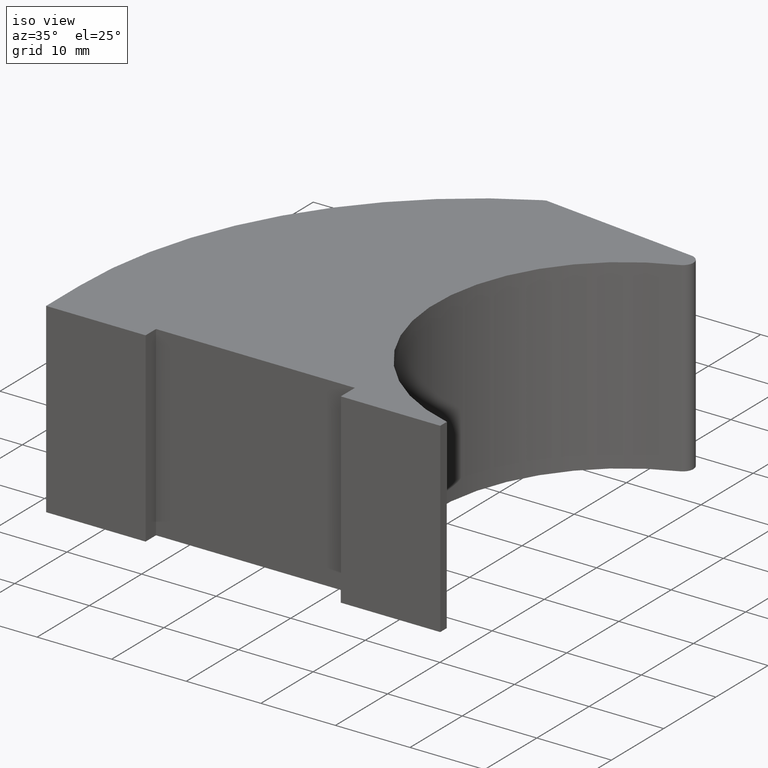
[diagram: clean part render]
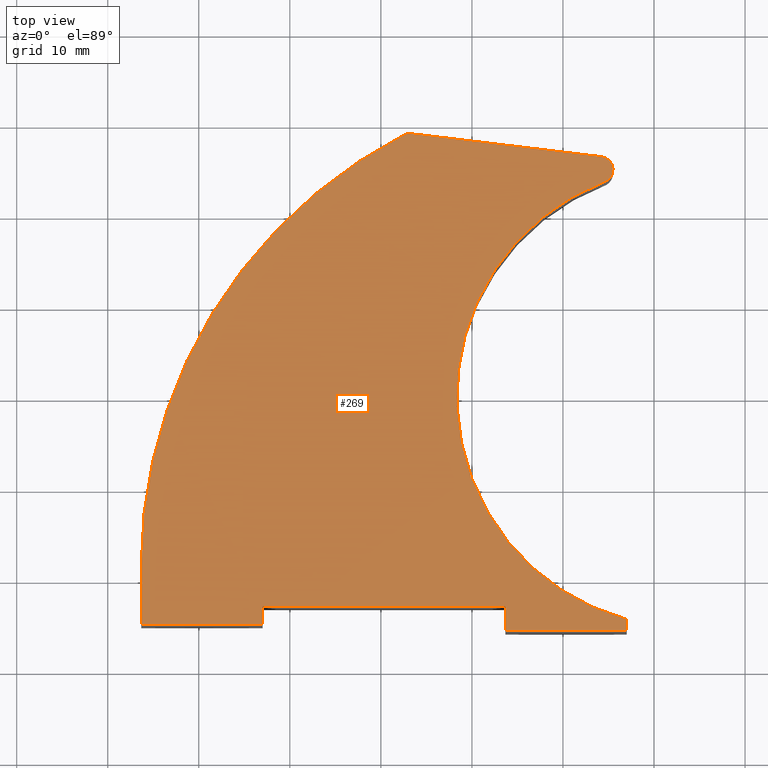
[diagram: tour spotlight — one face highlighted and labeled with its STEP entity id]
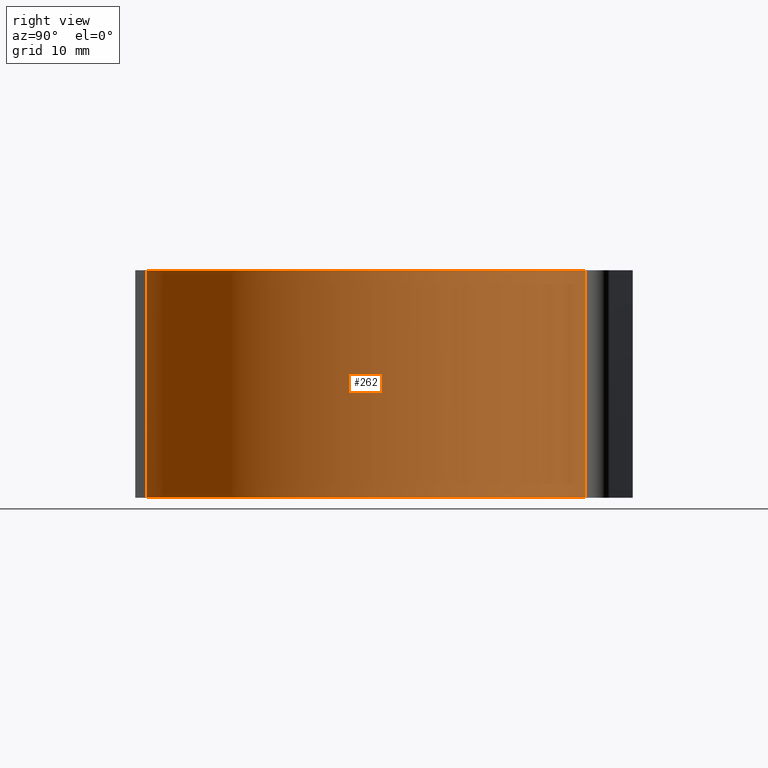
[diagram: tour spotlight — one face highlighted and labeled with its STEP entity id]
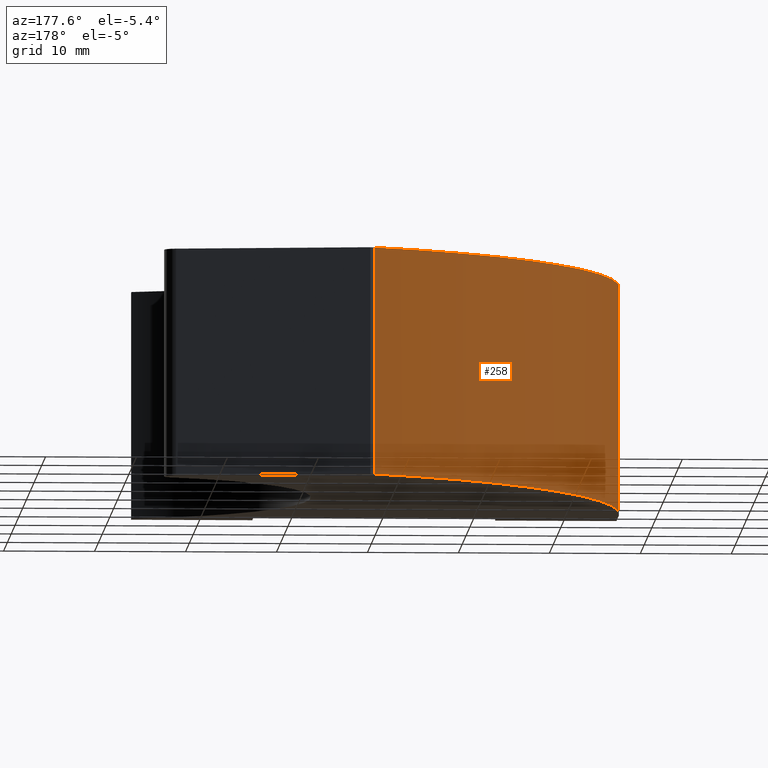
[diagram: tour spotlight — one face highlighted and labeled with its STEP entity id]
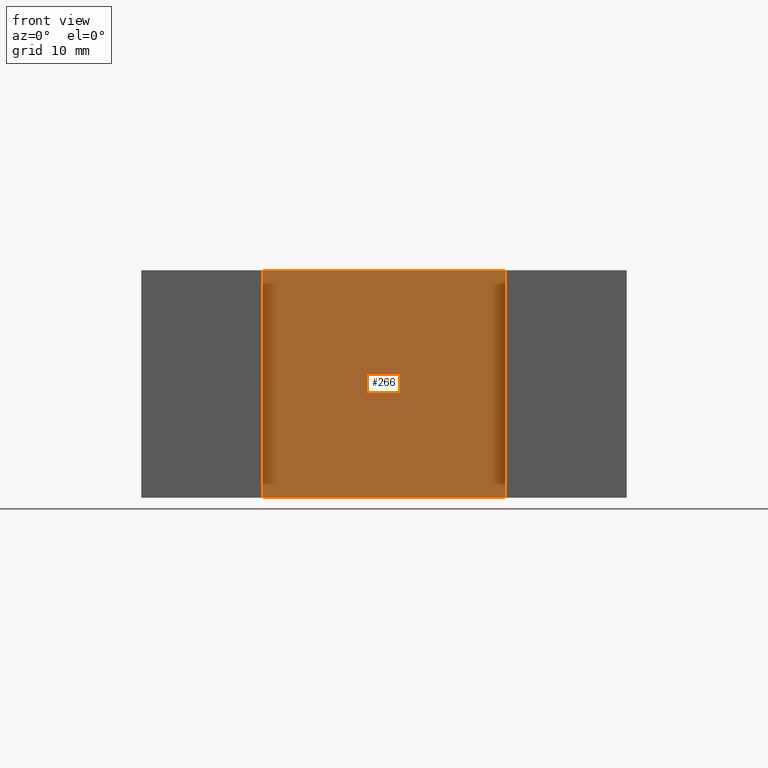
[diagram: tour spotlight — one face highlighted and labeled with its STEP entity id]
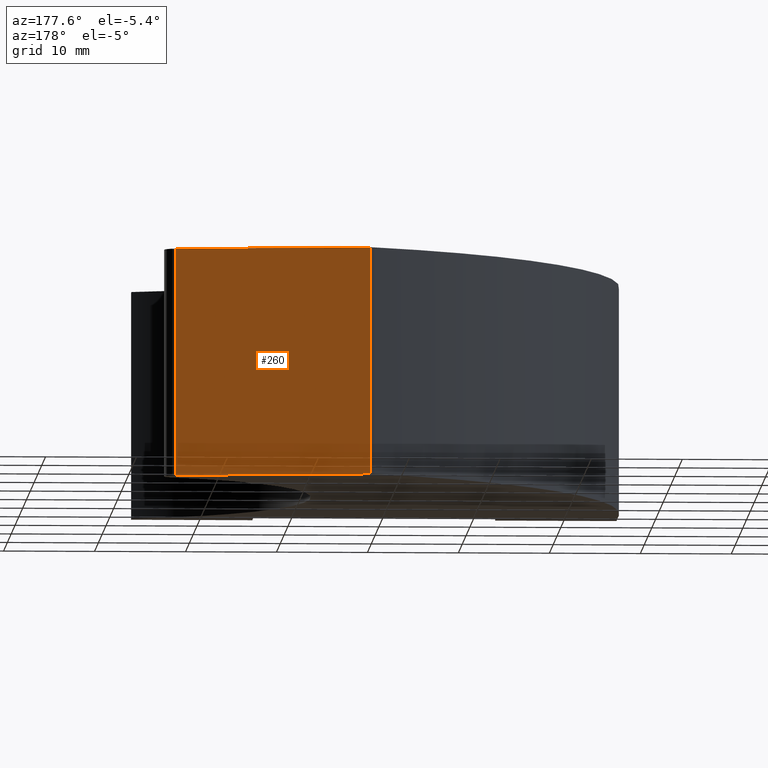
[diagram: tour spotlight — one face highlighted and labeled with its STEP entity id]
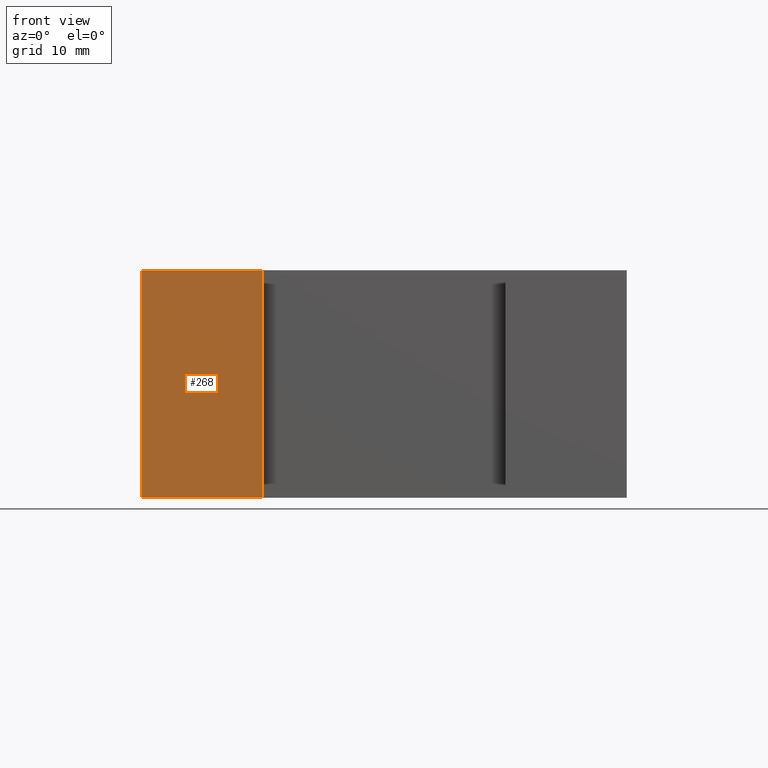
[diagram: tour spotlight — one face highlighted and labeled with its STEP entity id]
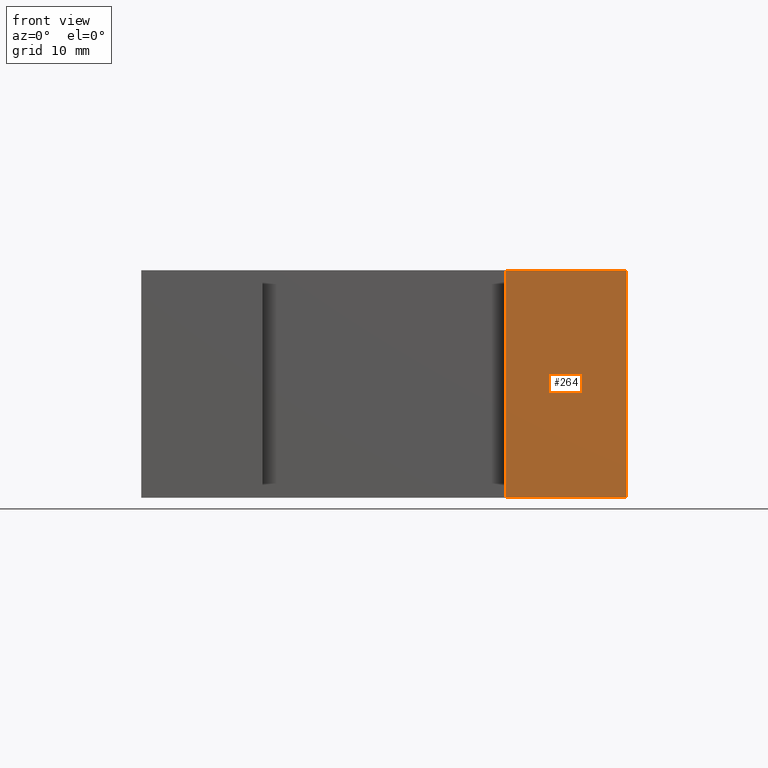
[diagram: tour spotlight — one face highlighted and labeled with its STEP entity id]
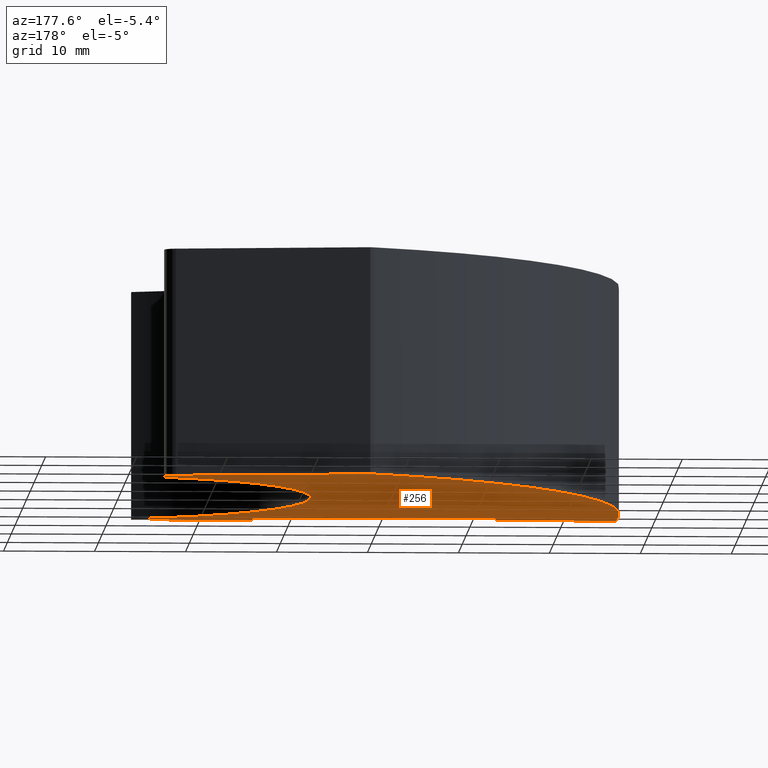
[diagram: tour spotlight — one face highlighted and labeled with its STEP entity id]
A machine part: a face-by-face anatomy tour. The part has 14 B-rep faces; the first image is the clean iso view, then the 8 largest visible faces are spotlighted one at a time (largest first), each with its STEP entity span.

Face 1 — top view, entity #269. In plain terms, the highlighted planar face has unit normal (0, 0, 1).
Definition (entity closure, byte-faithful):
#32=FACE_OUTER_BOUND('',#46,.T.);
#46=EDGE_LOOP('',(#233,#234,#235,#236,#237,#238,#239,#240,#241,#242,#243,
#244));
#50=CIRCLE('',#299,53.3329999999999);
#51=CIRCLE('',#303,1.428);
#52=CIRCLE('',#305,25.333);
#62=LINE('',#414,#92);
#66=LINE('',#423,#96);
#68=LINE('',#427,#98);
#72=LINE('',#439,#102);
#74=LINE('',#443,#104);
#76=LINE('',#447,#106);
#78=LINE('',#451,#108);
#80=LINE('',#455,#110);
#82=LINE('',#458,#112);
#92=VECTOR('',#334,10.);
#96=VECTOR('',#344,10.);
#98=VECTOR('',#348,10.);
#102=VECTOR('',#362,10.);
#104=VECTOR('',#366,10.);
#106=VECTOR('',#370,10.);
#108=VECTOR('',#374,10.);
#110=VECTOR('',#378,10.);
#112=VECTOR('',#382,10.);
#125=VERTEX_POINT('',#412);
#126=VERTEX_POINT('',#413);
#127=VERTEX_POINT('',#418);
#128=VERTEX_POINT('',#422);
#129=VERTEX_POINT('',#426);
#130=VERTEX_POINT('',#430);
#131=VERTEX_POINT('',#434);
#132=VERTEX_POINT('',#438);
#133=VERTEX_POINT('',#442);
#134=VERTEX_POINT('',#446);
#135=VERTEX_POINT('',#450);
#136=VERTEX_POINT('',#454);
#149=EDGE_CURVE('',#125,#126,#62,.T.);
#152=EDGE_CURVE('',#126,#127,#50,.T.);
#154=EDGE_CURVE('',#127,#128,#66,.T.);
#156=EDGE_CURVE('',#128,#129,#68,.T.);
#158=EDGE_CURVE('',#129,#130,#51,.T.);
#160=EDGE_CURVE('',#130,#131,#52,.T.);
#162=EDGE_CURVE('',#131,#132,#72,.T.);
#164=EDGE_CURVE('',#132,#133,#74,.T.);
#166=EDGE_CURVE('',#133,#134,#76,.T.);
#168=EDGE_CURVE('',#134,#135,#78,.T.);
#170=EDGE_CURVE('',#135,#136,#80,.T.);
#172=EDGE_CURVE('',#136,#125,#82,.T.);
#233=ORIENTED_EDGE('',*,*,#149,.F.);
#234=ORIENTED_EDGE('',*,*,#172,.F.);
#235=ORIENTED_EDGE('',*,*,#170,.F.);
#236=ORIENTED_EDGE('',*,*,#168,.F.);
#237=ORIENTED_EDGE('',*,*,#166,.F.);
#238=ORIENTED_EDGE('',*,*,#164,.F.);
#239=ORIENTED_EDGE('',*,*,#162,.F.);
#240=ORIENTED_EDGE('',*,*,#160,.F.);
#241=ORIENTED_EDGE('',*,*,#158,.F.);
#242=ORIENTED_EDGE('',*,*,#156,.F.);
#243=ORIENTED_EDGE('',*,*,#154,.F.);
#244=ORIENTED_EDGE('',*,*,#152,.F.);
#255=PLANE('',#312);
#269=ADVANCED_FACE('',(#32),#255,.T.);
#299=AXIS2_PLACEMENT_3D('',#419,#339,#340);
#303=AXIS2_PLACEMENT_3D('',#431,#352,#353);
#305=AXIS2_PLACEMENT_3D('',#435,#357,#358);
#312=AXIS2_PLACEMENT_3D('',#459,#383,#384);
#334=DIRECTION('',(0.,1.,0.));
#339=DIRECTION('center_axis',(0.,0.,-1.));
#340=DIRECTION('ref_axis',(-0.458513649876035,0.888687365093798,0.));
#344=DIRECTION('',(0.931764192662018,0.363064029164137,0.));
#348=DIRECTION('',(0.992786330537207,-0.119897047079849,0.));
#352=DIRECTION('center_axis',(0.,0.,-1.));
#353=DIRECTION('ref_axis',(0.494282654763418,-0.869301246519311,0.));
#357=DIRECTION('center_axis',(0.,0.,1.));
#358=DIRECTION('ref_axis',(0.351371941176162,-0.936235952607085,0.));
#362=DIRECTION('',(0.,-1.,0.));
#366=DIRECTION('',(-1.,0.,0.));
#370=DIRECTION('',(0.,1.,0.));
#374=DIRECTION('',(-1.,0.,0.));
#378=DIRECTION('',(0.,-1.,0.));
#382=DIRECTION('',(-1.,0.,0.));
#383=DIRECTION('center_axis',(0.,0.,1.));
#384=DIRECTION('ref_axis',(1.,0.,0.));
#412=CARTESIAN_POINT('',(3.67679593840793,5.04121471579654,12.5));
#413=CARTESIAN_POINT('',(3.67679593840793,11.4082147157965,12.5));
#414=CARTESIAN_POINT('',(3.67679593840793,11.7082147157965,12.5));
#418=CARTESIAN_POINT('',(32.5558874495693,58.804577958344,12.5));
#419=CARTESIAN_POINT('Origin',(57.0097959384079,11.4082147157965,12.5));
#422=CARTESIAN_POINT('',(32.9906113368357,58.9739691061557,12.5));
#423=CARTESIAN_POINT('',(32.9906113368357,58.9739691061557,12.5));
#426=CARTESIAN_POINT('',(54.2357104903102,56.4082361029203,12.5));
#427=CARTESIAN_POINT('',(54.3057509597051,56.3997774394615,12.5));
#430=CARTESIAN_POINT('',(54.7703331380824,53.7491750428836,12.5));
#431=CARTESIAN_POINT('Origin',(54.0644975070802,54.9905372229132,12.5));
#434=CARTESIAN_POINT('',(57.0097959384079,5.59013607775849,12.5));
#435=CARTESIAN_POINT('Origin',(63.6716385238981,30.0315096554883,12.5));
#438=CARTESIAN_POINT('',(57.0097959384079,4.34121471579654,12.5));
#439=CARTESIAN_POINT('',(57.0097959384079,4.34121471579654,12.5));
#442=CARTESIAN_POINT('',(43.6767959384079,4.34121471579654,12.5));
#443=CARTESIAN_POINT('',(43.6767959384079,4.34121471579654,12.5));
#446=CARTESIAN_POINT('',(43.6767959384079,7.04121471579654,12.5));
#447=CARTESIAN_POINT('',(43.6767959384079,7.04121471579654,12.5));
#450=CARTESIAN_POINT('',(17.0097959384079,7.04121471579654,12.5));
#451=CARTESIAN_POINT('',(17.0097959384079,7.04121471579654,12.5));
#454=CARTESIAN_POINT('',(17.0097959384079,5.04121471579654,12.5));
#455=CARTESIAN_POINT('',(17.0097959384079,5.04121471579654,12.5));
#458=CARTESIAN_POINT('',(3.67679593840793,5.04121471579654,12.5));
#459=CARTESIAN_POINT('Origin',(31.6432481248293,27.7181534740094,12.5));

Face 2 — right view, entity #262. In plain terms, the highlighted cylindrical surface (partial cylindrical patch) has radius 25.333 mm, axis along (0, 0, 1).
Definition (entity closure, byte-faithful):
#18=CYLINDRICAL_SURFACE('',#304,25.333);
#25=FACE_OUTER_BOUND('',#39,.T.);
#39=EDGE_LOOP('',(#205,#206,#207,#208));
#49=CIRCLE('',#296,25.333);
#52=CIRCLE('',#305,25.333);
#70=LINE('',#432,#100);
#71=LINE('',#436,#101);
#100=VECTOR('',#354,10.);
#101=VECTOR('',#359,10.);
#120=VERTEX_POINT('',#400);
#121=VERTEX_POINT('',#402);
#130=VERTEX_POINT('',#430);
#131=VERTEX_POINT('',#434);
#144=EDGE_CURVE('',#121,#120,#49,.T.);
#159=EDGE_CURVE('',#120,#130,#70,.T.);
#160=EDGE_CURVE('',#130,#131,#52,.T.);
#161=EDGE_CURVE('',#121,#131,#71,.T.);
#205=ORIENTED_EDGE('',*,*,#160,.T.);
#206=ORIENTED_EDGE('',*,*,#161,.F.);
#207=ORIENTED_EDGE('',*,*,#144,.T.);
#208=ORIENTED_EDGE('',*,*,#159,.T.);
#262=ADVANCED_FACE('',(#25),#18,.F.);
#296=AXIS2_PLACEMENT_3D('',#403,#326,#327);
#304=AXIS2_PLACEMENT_3D('',#433,#355,#356);
#305=AXIS2_PLACEMENT_3D('',#435,#357,#358);
#326=DIRECTION('center_axis',(0.,0.,-1.));
#327=DIRECTION('ref_axis',(0.351371941176162,-0.936235952607085,0.));
#354=DIRECTION('',(0.,0.,1.));
#355=DIRECTION('center_axis',(0.,0.,1.));
#356=DIRECTION('ref_axis',(0.351371941176162,-0.936235952607085,0.));
#357=DIRECTION('center_axis',(0.,0.,1.));
#358=DIRECTION('ref_axis',(0.351371941176162,-0.936235952607085,0.));
#359=DIRECTION('',(0.,0.,1.));
#400=CARTESIAN_POINT('',(54.7703331380824,53.7491750428836,-12.5));
#402=CARTESIAN_POINT('',(57.0097959384079,5.59013607775849,-12.5));
#403=CARTESIAN_POINT('Origin',(63.6716385238981,30.0315096554883,-12.5));
#430=CARTESIAN_POINT('',(54.7703331380824,53.7491750428836,12.5));
#432=CARTESIAN_POINT('',(54.7703331380824,53.7491750428836,0.));
#433=CARTESIAN_POINT('Origin',(63.6716385238981,30.0315096554883,0.));
#434=CARTESIAN_POINT('',(57.0097959384079,5.59013607775849,12.5));
#435=CARTESIAN_POINT('Origin',(63.6716385238981,30.0315096554883,12.5));
#436=CARTESIAN_POINT('',(57.0097959384079,5.59013607775849,0.));

Face 3 — auxiliary view, entity #258. In plain terms, the highlighted cylindrical surface (partial cylindrical patch) has radius 53.333 mm, axis along (0, 0, 1).
Definition (entity closure, byte-faithful):
#16=CYLINDRICAL_SURFACE('',#298,53.3329999999999);
#21=FACE_OUTER_BOUND('',#35,.T.);
#35=EDGE_LOOP('',(#189,#190,#191,#192));
#47=CIRCLE('',#294,53.3329999999999);
#50=CIRCLE('',#299,53.3329999999999);
#63=LINE('',#415,#93);
#65=LINE('',#420,#95);
#93=VECTOR('',#335,10.);
#95=VECTOR('',#341,10.);
#116=VERTEX_POINT('',#392);
#117=VERTEX_POINT('',#394);
#126=VERTEX_POINT('',#413);
#127=VERTEX_POINT('',#418);
#140=EDGE_CURVE('',#117,#116,#47,.T.);
#150=EDGE_CURVE('',#116,#126,#63,.T.);
#152=EDGE_CURVE('',#126,#127,#50,.T.);
#153=EDGE_CURVE('',#117,#127,#65,.T.);
#189=ORIENTED_EDGE('',*,*,#152,.T.);
#190=ORIENTED_EDGE('',*,*,#153,.F.);
#191=ORIENTED_EDGE('',*,*,#140,.T.);
#192=ORIENTED_EDGE('',*,*,#150,.T.);
#258=ADVANCED_FACE('',(#21),#16,.T.);
#294=AXIS2_PLACEMENT_3D('',#395,#320,#321);
#298=AXIS2_PLACEMENT_3D('',#417,#337,#338);
#299=AXIS2_PLACEMENT_3D('',#419,#339,#340);
#320=DIRECTION('center_axis',(0.,0.,1.));
#321=DIRECTION('ref_axis',(-0.458513649876035,0.888687365093798,0.));
#335=DIRECTION('',(0.,0.,1.));
#337=DIRECTION('center_axis',(0.,0.,1.));
#338=DIRECTION('ref_axis',(-0.458513649876035,0.888687365093798,0.));
#339=DIRECTION('center_axis',(0.,0.,-1.));
#340=DIRECTION('ref_axis',(-0.458513649876035,0.888687365093798,0.));
#341=DIRECTION('',(0.,0.,1.));
#392=CARTESIAN_POINT('',(3.67679593840793,11.4082147157965,-12.5));
#394=CARTESIAN_POINT('',(32.5558874495693,58.804577958344,-12.5));
#395=CARTESIAN_POINT('Origin',(57.0097959384079,11.4082147157965,-12.5));
#413=CARTESIAN_POINT('',(3.67679593840793,11.4082147157965,12.5));
#415=CARTESIAN_POINT('',(3.67679593840793,11.4082147157965,0.));
#417=CARTESIAN_POINT('Origin',(57.0097959384079,11.4082147157965,0.));
#418=CARTESIAN_POINT('',(32.5558874495693,58.804577958344,12.5));
#419=CARTESIAN_POINT('Origin',(57.0097959384079,11.4082147157965,12.5));
#420=CARTESIAN_POINT('',(32.5558874495693,58.804577958344,0.));

Face 4 — front view, entity #266. In plain terms, the highlighted planar face has unit normal (0, -1, 0).
Definition (entity closure, byte-faithful):
#29=FACE_OUTER_BOUND('',#43,.T.);
#43=EDGE_LOOP('',(#221,#222,#223,#224));
#61=LINE('',#410,#91);
#77=LINE('',#448,#107);
#78=LINE('',#451,#108);
#79=LINE('',#452,#109);
#91=VECTOR('',#331,10.);
#107=VECTOR('',#371,10.);
#108=VECTOR('',#374,10.);
#109=VECTOR('',#375,10.);
#114=VERTEX_POINT('',#388);
#124=VERTEX_POINT('',#408);
#134=VERTEX_POINT('',#446);
#135=VERTEX_POINT('',#450);
#148=EDGE_CURVE('',#114,#124,#61,.T.);
#167=EDGE_CURVE('',#124,#134,#77,.T.);
#168=EDGE_CURVE('',#134,#135,#78,.T.);
#169=EDGE_CURVE('',#114,#135,#79,.T.);
#221=ORIENTED_EDGE('',*,*,#168,.T.);
#222=ORIENTED_EDGE('',*,*,#169,.F.);
#223=ORIENTED_EDGE('',*,*,#148,.T.);
#224=ORIENTED_EDGE('',*,*,#167,.T.);
#252=PLANE('',#309);
#266=ADVANCED_FACE('',(#29),#252,.T.);
#309=AXIS2_PLACEMENT_3D('',#449,#372,#373);
#331=DIRECTION('',(1.,0.,0.));
#371=DIRECTION('',(0.,0.,1.));
#372=DIRECTION('center_axis',(0.,-1.,0.));
#373=DIRECTION('ref_axis',(0.,0.,-1.));
#374=DIRECTION('',(-1.,0.,0.));
#375=DIRECTION('',(0.,0.,1.));
#388=CARTESIAN_POINT('',(17.0097959384079,7.04121471579654,-12.5));
#408=CARTESIAN_POINT('',(43.6767959384079,7.04121471579654,-12.5));
#410=CARTESIAN_POINT('',(17.0097959384079,7.04121471579654,-12.5));
#446=CARTESIAN_POINT('',(43.6767959384079,7.04121471579654,12.5));
#448=CARTESIAN_POINT('',(43.6767959384079,7.04121471579654,0.));
#449=CARTESIAN_POINT('Origin',(43.6767959384079,7.04121471579654,0.));
#450=CARTESIAN_POINT('',(17.0097959384079,7.04121471579654,12.5));
#451=CARTESIAN_POINT('',(17.0097959384079,7.04121471579654,12.5));
#452=CARTESIAN_POINT('',(17.0097959384079,7.04121471579654,0.));

Face 5 — auxiliary view, entity #260. In plain terms, the highlighted planar face has unit normal (0.1199, 0.9928, 0).
Definition (entity closure, byte-faithful):
#23=FACE_OUTER_BOUND('',#37,.T.);
#37=EDGE_LOOP('',(#197,#198,#199,#200));
#57=LINE('',#399,#87);
#67=LINE('',#424,#97);
#68=LINE('',#427,#98);
#69=LINE('',#428,#99);
#87=VECTOR('',#323,10.);
#97=VECTOR('',#345,10.);
#98=VECTOR('',#348,10.);
#99=VECTOR('',#349,10.);
#118=VERTEX_POINT('',#396);
#119=VERTEX_POINT('',#398);
#128=VERTEX_POINT('',#422);
#129=VERTEX_POINT('',#426);
#142=EDGE_CURVE('',#119,#118,#57,.T.);
#155=EDGE_CURVE('',#118,#128,#67,.T.);
#156=EDGE_CURVE('',#128,#129,#68,.T.);
#157=EDGE_CURVE('',#119,#129,#69,.T.);
#197=ORIENTED_EDGE('',*,*,#156,.T.);
#198=ORIENTED_EDGE('',*,*,#157,.F.);
#199=ORIENTED_EDGE('',*,*,#142,.T.);
#200=ORIENTED_EDGE('',*,*,#155,.T.);
#248=PLANE('',#301);
#260=ADVANCED_FACE('',(#23),#248,.T.);
#301=AXIS2_PLACEMENT_3D('',#425,#346,#347);
#323=DIRECTION('',(-0.992786330537207,0.119897047079849,0.));
#345=DIRECTION('',(0.,0.,1.));
#346=DIRECTION('center_axis',(0.119897047079849,0.992786330537207,0.));
#347=DIRECTION('ref_axis',(0.,0.,1.));
#348=DIRECTION('',(0.992786330537207,-0.119897047079849,0.));
#349=DIRECTION('',(0.,0.,1.));
#396=CARTESIAN_POINT('',(32.9906113368357,58.9739691061557,-12.5));
#398=CARTESIAN_POINT('',(54.2357104903102,56.4082361029203,-12.5));
#399=CARTESIAN_POINT('',(54.3057509597051,56.3997774394615,-12.5));
#422=CARTESIAN_POINT('',(32.9906113368357,58.9739691061557,12.5));
#424=CARTESIAN_POINT('',(32.9906113368357,58.9739691061557,0.));
#425=CARTESIAN_POINT('Origin',(32.9906113368357,58.9739691061557,0.));
#426=CARTESIAN_POINT('',(54.2357104903102,56.4082361029203,12.5));
#427=CARTESIAN_POINT('',(54.3057509597051,56.3997774394615,12.5));
#428=CARTESIAN_POINT('',(54.2357104903102,56.4082361029203,0.));

Face 6 — front view, entity #268. In plain terms, the highlighted planar face has unit normal (0, -1, 0).
Definition (entity closure, byte-faithful):
#31=FACE_OUTER_BOUND('',#45,.T.);
#45=EDGE_LOOP('',(#229,#230,#231,#232));
#54=LINE('',#391,#84);
#64=LINE('',#416,#94);
#81=LINE('',#456,#111);
#82=LINE('',#458,#112);
#84=VECTOR('',#318,10.);
#94=VECTOR('',#336,10.);
#111=VECTOR('',#379,10.);
#112=VECTOR('',#382,10.);
#113=VERTEX_POINT('',#387);
#115=VERTEX_POINT('',#390);
#125=VERTEX_POINT('',#412);
#136=VERTEX_POINT('',#454);
#138=EDGE_CURVE('',#115,#113,#54,.T.);
#151=EDGE_CURVE('',#125,#115,#64,.T.);
#171=EDGE_CURVE('',#113,#136,#81,.T.);
#172=EDGE_CURVE('',#136,#125,#82,.T.);
#229=ORIENTED_EDGE('',*,*,#172,.T.);
#230=ORIENTED_EDGE('',*,*,#151,.T.);
#231=ORIENTED_EDGE('',*,*,#138,.T.);
#232=ORIENTED_EDGE('',*,*,#171,.T.);
#254=PLANE('',#311);
#268=ADVANCED_FACE('',(#31),#254,.T.);
#311=AXIS2_PLACEMENT_3D('',#457,#380,#381);
#318=DIRECTION('',(1.,0.,0.));
#336=DIRECTION('',(0.,0.,-1.));
#379=DIRECTION('',(0.,0.,1.));
#380=DIRECTION('center_axis',(0.,-1.,0.));
#381=DIRECTION('ref_axis',(0.,0.,-1.));
#382=DIRECTION('',(-1.,0.,0.));
#387=CARTESIAN_POINT('',(17.0097959384079,5.04121471579654,-12.5));
#390=CARTESIAN_POINT('',(3.67679593840793,5.04121471579654,-12.5));
#391=CARTESIAN_POINT('',(3.67679593840793,5.04121471579654,-12.5));
#412=CARTESIAN_POINT('',(3.67679593840793,5.04121471579654,12.5));
#416=CARTESIAN_POINT('',(3.67679593840793,5.04121471579654,0.));
#454=CARTESIAN_POINT('',(17.0097959384079,5.04121471579654,12.5));
#456=CARTESIAN_POINT('',(17.0097959384079,5.04121471579654,0.));
#457=CARTESIAN_POINT('Origin',(17.0097959384079,5.04121471579654,0.));
#458=CARTESIAN_POINT('',(3.67679593840793,5.04121471579654,12.5));

Face 7 — front view, entity #264. In plain terms, the highlighted planar face has unit normal (0, -1, 0).
Definition (entity closure, byte-faithful):
#27=FACE_OUTER_BOUND('',#41,.T.);
#41=EDGE_LOOP('',(#213,#214,#215,#216));
#59=LINE('',#407,#89);
#73=LINE('',#440,#103);
#74=LINE('',#443,#104);
#75=LINE('',#444,#105);
#89=VECTOR('',#329,10.);
#103=VECTOR('',#363,10.);
#104=VECTOR('',#366,10.);
#105=VECTOR('',#367,10.);
#122=VERTEX_POINT('',#404);
#123=VERTEX_POINT('',#406);
#132=VERTEX_POINT('',#438);
#133=VERTEX_POINT('',#442);
#146=EDGE_CURVE('',#123,#122,#59,.T.);
#163=EDGE_CURVE('',#122,#132,#73,.T.);
#164=EDGE_CURVE('',#132,#133,#74,.T.);
#165=EDGE_CURVE('',#123,#133,#75,.T.);
#213=ORIENTED_EDGE('',*,*,#164,.T.);
#214=ORIENTED_EDGE('',*,*,#165,.F.);
#215=ORIENTED_EDGE('',*,*,#146,.T.);
#216=ORIENTED_EDGE('',*,*,#163,.T.);
#250=PLANE('',#307);
#264=ADVANCED_FACE('',(#27),#250,.T.);
#307=AXIS2_PLACEMENT_3D('',#441,#364,#365);
#329=DIRECTION('',(1.,0.,0.));
#363=DIRECTION('',(0.,0.,1.));
#364=DIRECTION('center_axis',(0.,-1.,0.));
#365=DIRECTION('ref_axis',(0.,0.,-1.));
#366=DIRECTION('',(-1.,0.,0.));
#367=DIRECTION('',(0.,0.,1.));
#404=CARTESIAN_POINT('',(57.0097959384079,4.34121471579654,-12.5));
#406=CARTESIAN_POINT('',(43.6767959384079,4.34121471579654,-12.5));
#407=CARTESIAN_POINT('',(43.6767959384079,4.34121471579654,-12.5));
#438=CARTESIAN_POINT('',(57.0097959384079,4.34121471579654,12.5));
#440=CARTESIAN_POINT('',(57.0097959384079,4.34121471579654,0.));
#441=CARTESIAN_POINT('Origin',(57.0097959384079,4.34121471579654,0.));
#442=CARTESIAN_POINT('',(43.6767959384079,4.34121471579654,12.5));
#443=CARTESIAN_POINT('',(43.6767959384079,4.34121471579654,12.5));
#444=CARTESIAN_POINT('',(43.6767959384079,4.34121471579654,0.));

Face 8 — auxiliary view, entity #256. In plain terms, the highlighted planar face has unit normal (0, 0, 1).
Definition (entity closure, byte-faithful):
#19=FACE_OUTER_BOUND('',#33,.T.);
#33=EDGE_LOOP('',(#173,#174,#175,#176,#177,#178,#179,#180,#181,#182,#183,
#184));
#47=CIRCLE('',#294,53.3329999999999);
#48=CIRCLE('',#295,1.428);
#49=CIRCLE('',#296,25.333);
#53=LINE('',#389,#83);
#54=LINE('',#391,#84);
#55=LINE('',#393,#85);
#56=LINE('',#397,#86);
#57=LINE('',#399,#87);
#58=LINE('',#405,#88);
#59=LINE('',#407,#89);
#60=LINE('',#409,#90);
#61=LINE('',#410,#91);
#83=VECTOR('',#317,10.);
#84=VECTOR('',#318,10.);
#85=VECTOR('',#319,10.);
#86=VECTOR('',#322,10.);
#87=VECTOR('',#323,10.);
#88=VECTOR('',#328,10.);
#89=VECTOR('',#329,10.);
#90=VECTOR('',#330,10.);
#91=VECTOR('',#331,10.);
#113=VERTEX_POINT('',#387);
#114=VERTEX_POINT('',#388);
#115=VERTEX_POINT('',#390);
#116=VERTEX_POINT('',#392);
#117=VERTEX_POINT('',#394);
#118=VERTEX_POINT('',#396);
#119=VERTEX_POINT('',#398);
#120=VERTEX_POINT('',#400);
#121=VERTEX_POINT('',#402);
#122=VERTEX_POINT('',#404);
#123=VERTEX_POINT('',#406);
#124=VERTEX_POINT('',#408);
#137=EDGE_CURVE('',#113,#114,#53,.T.);
#138=EDGE_CURVE('',#115,#113,#54,.T.);
#139=EDGE_CURVE('',#116,#115,#55,.T.);
#140=EDGE_CURVE('',#117,#116,#47,.T.);
#141=EDGE_CURVE('',#118,#117,#56,.T.);
#142=EDGE_CURVE('',#119,#118,#57,.T.);
#143=EDGE_CURVE('',#120,#119,#48,.T.);
#144=EDGE_CURVE('',#121,#120,#49,.T.);
#145=EDGE_CURVE('',#122,#121,#58,.T.);
#146=EDGE_CURVE('',#123,#122,#59,.T.);
#147=EDGE_CURVE('',#124,#123,#60,.T.);
#148=EDGE_CURVE('',#114,#124,#61,.T.);
#173=ORIENTED_EDGE('',*,*,#137,.F.);
#174=ORIENTED_EDGE('',*,*,#138,.F.);
#175=ORIENTED_EDGE('',*,*,#139,.F.);
#176=ORIENTED_EDGE('',*,*,#140,.F.);
#177=ORIENTED_EDGE('',*,*,#141,.F.);
#178=ORIENTED_EDGE('',*,*,#142,.F.);
#179=ORIENTED_EDGE('',*,*,#143,.F.);
#180=ORIENTED_EDGE('',*,*,#144,.F.);
#181=ORIENTED_EDGE('',*,*,#145,.F.);
#182=ORIENTED_EDGE('',*,*,#146,.F.);
#183=ORIENTED_EDGE('',*,*,#147,.F.);
#184=ORIENTED_EDGE('',*,*,#148,.F.);
#245=PLANE('',#293);
#256=ADVANCED_FACE('',(#19),#245,.F.);
#293=AXIS2_PLACEMENT_3D('',#386,#315,#316);
#294=AXIS2_PLACEMENT_3D('',#395,#320,#321);
#295=AXIS2_PLACEMENT_3D('',#401,#324,#325);
#296=AXIS2_PLACEMENT_3D('',#403,#326,#327);
#315=DIRECTION('center_axis',(0.,0.,1.));
#316=DIRECTION('ref_axis',(1.,0.,0.));
#317=DIRECTION('',(0.,1.,0.));
#318=DIRECTION('',(1.,0.,0.));
#319=DIRECTION('',(0.,-1.,0.));
#320=DIRECTION('center_axis',(0.,0.,1.));
#321=DIRECTION('ref_axis',(-0.458513649876035,0.888687365093798,0.));
#322=DIRECTION('',(-0.931764192662018,-0.363064029164137,0.));
#323=DIRECTION('',(-0.992786330537207,0.119897047079849,0.));
#324=DIRECTION('center_axis',(0.,0.,1.));
#325=DIRECTION('ref_axis',(0.494282654763418,-0.869301246519311,0.));
#326=DIRECTION('center_axis',(0.,0.,-1.));
#327=DIRECTION('ref_axis',(0.351371941176162,-0.936235952607085,0.));
#328=DIRECTION('',(0.,1.,0.));
#329=DIRECTION('',(1.,0.,0.));
#330=DIRECTION('',(0.,-1.,0.));
#331=DIRECTION('',(1.,0.,0.));
#386=CARTESIAN_POINT('Origin',(31.6432481248293,27.7181534740094,-12.5));
#387=CARTESIAN_POINT('',(17.0097959384079,5.04121471579654,-12.5));
#388=CARTESIAN_POINT('',(17.0097959384079,7.04121471579654,-12.5));
#389=CARTESIAN_POINT('',(17.0097959384079,5.04121471579654,-12.5));
#390=CARTESIAN_POINT('',(3.67679593840793,5.04121471579654,-12.5));
#391=CARTESIAN_POINT('',(3.67679593840793,5.04121471579654,-12.5));
#392=CARTESIAN_POINT('',(3.67679593840793,11.4082147157965,-12.5));
#393=CARTESIAN_POINT('',(3.67679593840793,11.7082147157965,-12.5));
#394=CARTESIAN_POINT('',(32.5558874495693,58.804577958344,-12.5));
#395=CARTESIAN_POINT('Origin',(57.0097959384079,11.4082147157965,-12.5));
#396=CARTESIAN_POINT('',(32.9906113368357,58.9739691061557,-12.5));
#397=CARTESIAN_POINT('',(32.9906113368357,58.9739691061557,-12.5));
#398=CARTESIAN_POINT('',(54.2357104903102,56.4082361029203,-12.5));
#399=CARTESIAN_POINT('',(54.3057509597051,56.3997774394615,-12.5));
#400=CARTESIAN_POINT('',(54.7703331380824,53.7491750428836,-12.5));
#401=CARTESIAN_POINT('Origin',(54.0644975070802,54.9905372229132,-12.5));
#402=CARTESIAN_POINT('',(57.0097959384079,5.59013607775849,-12.5));
#403=CARTESIAN_POINT('Origin',(63.6716385238981,30.0315096554883,-12.5));
#404=CARTESIAN_POINT('',(57.0097959384079,4.34121471579654,-12.5));
#405=CARTESIAN_POINT('',(57.0097959384079,4.34121471579654,-12.5));
#406=CARTESIAN_POINT('',(43.6767959384079,4.34121471579654,-12.5));
#407=CARTESIAN_POINT('',(43.6767959384079,4.34121471579654,-12.5));
#408=CARTESIAN_POINT('',(43.6767959384079,7.04121471579654,-12.5));
#409=CARTESIAN_POINT('',(43.6767959384079,7.04121471579654,-12.5));
#410=CARTESIAN_POINT('',(17.0097959384079,7.04121471579654,-12.5));